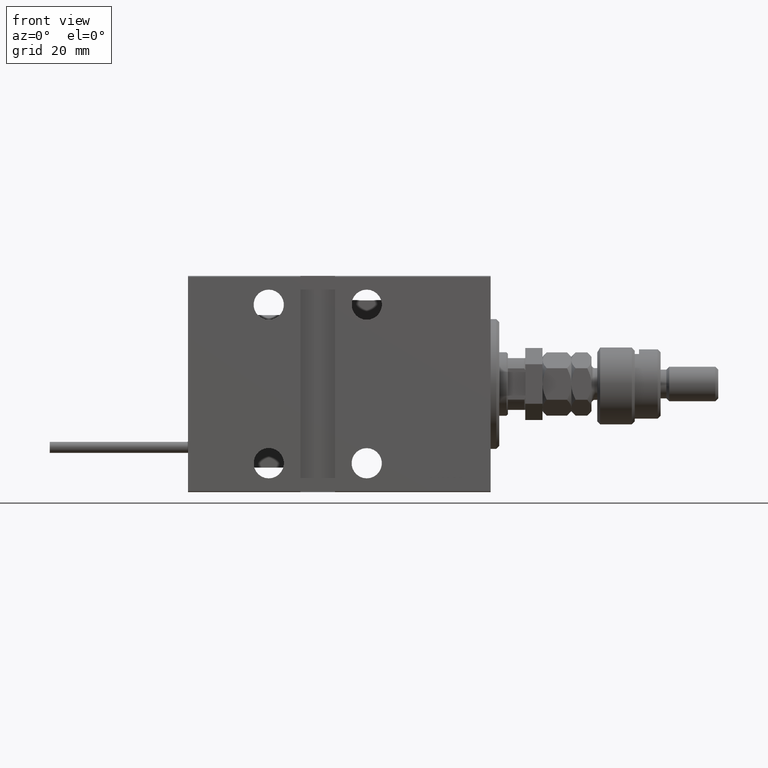
[diagram: clean part render]
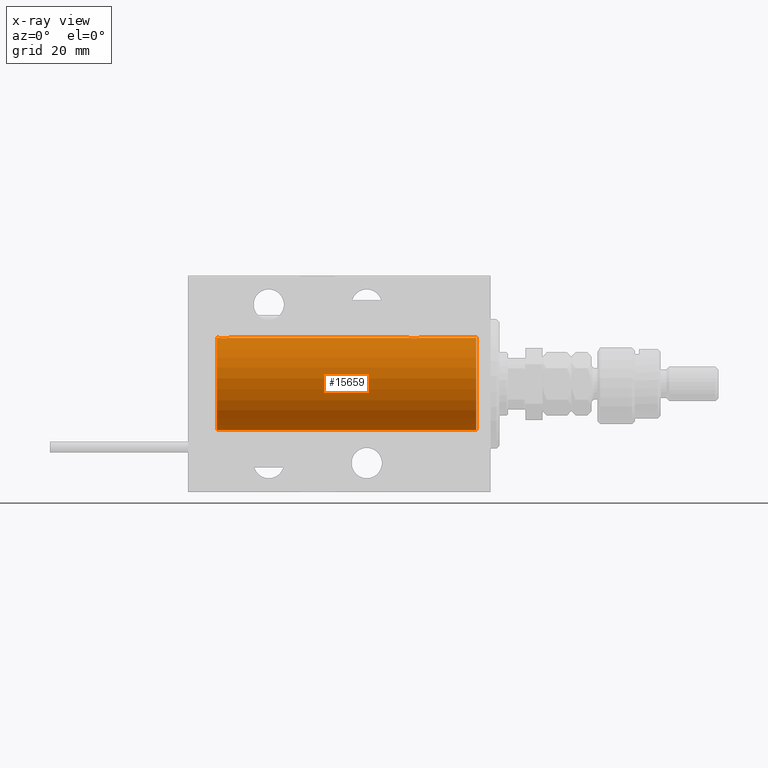
[diagram: x-ray — body ghosted, one internal face saturated and labeled with its STEP entity id]
A machine part, front view, then the same camera in x-ray: the body is ghosted and one INTERNAL B-rep face — a face not visible from any outside direction — is saturated and labeled: STEP entity #15659.
In plain terms, the highlighted cylindrical surface (partial cylindrical patch) has radius 16 mm, axis along (1, 0, -0).
Its self-contained STEP definition (entity closure, byte-faithful):
#826 = CARTESIAN_POINT ( 'NONE',  ( 94.50000000000002842, 0.1322838750249261119, 16.00000000000000000 ) ) ;
#1881 = CARTESIAN_POINT ( 'NONE',  ( 91.61382242942730159, 1.797743958659247854, 15.89876304682112007 ) ) ;
#1992 = CARTESIAN_POINT ( 'NONE',  ( 24.49999999999999289, 0.1305944228192297274, 15.99999999999999645 ) ) ;
#2092 = ORIENTED_EDGE ( 'NONE', *, *, #50266, .F. ) ;
#2136 = CARTESIAN_POINT ( 'NONE',  ( 91.85613031966988729, 1.898058445420878648, 15.88709929148890510 ) ) ;
#2203 = DIRECTION ( 'NONE',  ( -1.000000000000000000, -0.000000000000000000, -0.000000000000000000 ) ) ;
#2461 = CARTESIAN_POINT ( 'NONE',  ( 95.00000000000000000, 0.000000000000000000, 16.00000000000000000 ) ) ;
#2505 = CARTESIAN_POINT ( 'NONE',  ( 26.23748416992101085, 1.987008272775788731, 15.87616016863256618 ) ) ;
#2743 = CARTESIAN_POINT ( 'NONE',  ( 95.00000000000000000, 0.000000000000000000, 0.000000000000000000 ) ) ;
#2759 = EDGE_LOOP ( 'NONE', ( #2092, #40787, #23611, #37698, #14550, #29788, #38156, #10484 ) ) ;
#5724 = LINE ( 'NONE', #2461, #41151 ) ;
#5914 = CARTESIAN_POINT ( 'NONE',  ( 91.28032342557723666, 1.590393755196000347, 15.92092783521424693 ) ) ;
#6534 = CARTESIAN_POINT ( 'NONE',  ( 24.76517329325045225, 1.003662148334361959, 15.96885838080210007 ) ) ;
#6776 = DIRECTION ( 'NONE',  ( -1.000000000000000000, -0.000000000000000000, -0.000000000000000000 ) ) ;
#7328 = CARTESIAN_POINT ( 'NONE',  ( 24.56430947073869930, 0.5198215460038717595, 15.99206840425678955 ) ) ;
#7636 = VERTEX_POINT ( 'NONE', #31700 ) ;
#8613 = CARTESIAN_POINT ( 'NONE',  ( 95.00000000000000000, 1.959434878635765131E-15, -16.00000000000000000 ) ) ;
#9085 = EDGE_CURVE ( 'NONE', #23897, #13917, #22957, .T. ) ;
#9809 = CARTESIAN_POINT ( 'NONE',  ( 28.49999999999999645, -1.207828523974853969E-15, 16.00000000000000000 ) ) ;
#9930 = CARTESIAN_POINT ( 'NONE',  ( 94.29713414748218270, 0.8874076679346750707, 15.97583181162461052 ) ) ;
#10484 = ORIENTED_EDGE ( 'NONE', *, *, #9085, .T. ) ;
#10552 = CARTESIAN_POINT ( 'NONE',  ( 28.39758870055591444, 0.6452446332038146437, 15.98744362947834574 ) ) ;
#10697 = CARTESIAN_POINT ( 'NONE',  ( 90.50000000000000000, -2.738767290746308786E-23, 16.00000000000000000 ) ) ;
#11322 = DIRECTION ( 'NONE',  ( 0.000000000000000000, 0.000000000000000000, 1.000000000000000000 ) ) ;
#13200 = CARTESIAN_POINT ( 'NONE',  ( 95.00000000000000000, 0.000000000000000000, 16.00000000000000000 ) ) ;
#13677 = CARTESIAN_POINT ( 'NONE',  ( 94.43611326682062668, 0.5181437283162084739, 15.99211983514074653 ) ) ;
#13917 = VERTEX_POINT ( 'NONE', #51748 ) ;
#14458 = CARTESIAN_POINT ( 'NONE',  ( 90.56430947073874904, 0.5198215460038719815, 15.99206840425679310 ) ) ;
#14490 = CARTESIAN_POINT ( 'NONE',  ( 24.50000000000000000, -2.739635037742051899E-23, 16.00000000000000000 ) ) ;
#14550 = ORIENTED_EDGE ( 'NONE', *, *, #16802, .T. ) ;
#14549 = FACE_OUTER_BOUND ( 'NONE', #2759, .T. ) ;
#14565 = VECTOR ( 'NONE', #22950, 1000.000000000000000 ) ;
#14567 = CARTESIAN_POINT ( 'NONE',  ( 28.49999999999998579, 0.1322838750249257511, 16.00000000000000000 ) ) ;
#14792 = EDGE_CURVE ( 'NONE', #45315, #35365, #44469, .T. ) ;
#14966 = CARTESIAN_POINT ( 'NONE',  ( 90.49999999999998579, 0.1305944228192297552, 16.00000000000000000 ) ) ;
#15318 = CYLINDRICAL_SURFACE ( 'NONE', #49667, 16.00000000000000000 ) ;
#15336 = CARTESIAN_POINT ( 'NONE',  ( 24.50000000000000000, -2.739635037742051899E-23, 16.00000000000000000 ) ) ;
#15659 = ADVANCED_FACE ( 'NONE', ( #14549 ), #15318, .F. ) ;
#15934 = B_SPLINE_CURVE_WITH_KNOTS ( 'NONE', 3,
 ( #21696, #826, #50368, #13677, #17945, #9930, #30539, #38590, #22735, #42620, #22987, #47137, #18982, #42873, #31318, #46882, #2136, #1881, #47387, #5914, #18199, #35079, #22225, #39107, #34560, #39362, #14458, #18716, #14966, #10697 ),
 .UNSPECIFIED., .F., .F.,
 ( 4, 2, 2, 2, 2, 2, 2, 2, 2, 2, 2, 2, 2, 2, 4 ),
 ( 3.488315472694475996E-18, 0.0003911894522871309362, 0.0007823789045742584030, 0.001173568356861385761, 0.001564757809148513337, 0.002347136713722738129, 0.003129515618296963356, 0.003520705070584075318, 0.003911894522871188148, 0.004303083975158299677, 0.004694273427445412074, 0.005085462879732524470, 0.005476652332019635999, 0.005867841784306749263, 0.006259031236593860792 ),
 .UNSPECIFIED. ) ;
#16210 = CARTESIAN_POINT ( 'NONE',  ( 5.000000000000004441, 0.000000000000000000, 0.000000000000000000 ) ) ;
#16802 = EDGE_CURVE ( 'NONE', #47936, #46125, #5724, .T. ) ;
#17611 = VECTOR ( 'NONE', #37010, 1000.000000000000000 ) ;
#17945 = CARTESIAN_POINT ( 'NONE',  ( 94.39758870055594286, 0.6452446332038145327, 15.98744362947834929 ) ) ;
#18199 = CARTESIAN_POINT ( 'NONE',  ( 91.17924175171070544, 1.507649250492122173, 15.92908549642227101 ) ) ;
#18317 = CARTESIAN_POINT ( 'NONE',  ( 24.90998471899876066, 1.220169175415113827, 15.95377581882983442 ) ) ;
#18606 = DIRECTION ( 'NONE',  ( -1.000000000000000000, -0.000000000000000000, -0.000000000000000000 ) ) ;
#18716 = CARTESIAN_POINT ( 'NONE',  ( 90.51309075167873175, 0.2632563459770824177, 15.99834873924246459 ) ) ;
#18982 = CARTESIAN_POINT ( 'NONE',  ( 92.76191462762255924, 1.999903730784150957, 15.87451999516786216 ) ) ;
#19366 = CARTESIAN_POINT ( 'NONE',  ( 25.61382242942729803, 1.797743958659254515, 15.89876304682112007 ) ) ;
#21388 = LINE ( 'NONE', #50059, #14565 ) ;
#21696 = CARTESIAN_POINT ( 'NONE',  ( 94.50000000000000000, 3.590027768233731054E-15, 16.00000000000000000 ) ) ;
#22225 = CARTESIAN_POINT ( 'NONE',  ( 90.90998471899878552, 1.220169175415117158, 15.95377581882983975 ) ) ;
#22623 = CARTESIAN_POINT ( 'NONE',  ( 95.00000000000000000, 0.000000000000000000, 16.00000000000000000 ) ) ;
#22735 = CARTESIAN_POINT ( 'NONE',  ( 94.00610712468248664, 1.322357532253812806, 15.94553003295878391 ) ) ;
#22950 = DIRECTION ( 'NONE',  ( -1.000000000000000000, -0.000000000000000000, -0.000000000000000000 ) ) ;
#22957 = CIRCLE ( 'NONE', #52914, 16.00000000000000000 ) ;
#22987 = CARTESIAN_POINT ( 'NONE',  ( 93.50659181559579736, 1.747750603376301948, 15.90457341008072412 ) ) ;
#23104 = CARTESIAN_POINT ( 'NONE',  ( 28.43611326682063378, 0.5181437283162068086, 15.99211983514074298 ) ) ;
#23374 = CARTESIAN_POINT ( 'NONE',  ( 28.49999999999999645, -1.207828523974853969E-15, 16.00000000000000000 ) ) ;
#23611 = ORIENTED_EDGE ( 'NONE', *, *, #49788, .T. ) ;
#23638 = CARTESIAN_POINT ( 'NONE',  ( 26.37014691649501685, 2.000047931387139322, 15.87450182760079187 ) ) ;
#23897 = VERTEX_POINT ( 'NONE', #33550 ) ;
#26878 = CARTESIAN_POINT ( 'NONE',  ( 28.29713414748220046, 0.8874076679346754037, 15.97583181162460697 ) ) ;
#27404 = CARTESIAN_POINT ( 'NONE',  ( 27.02531756459403667, 1.947280337074160927, 15.88137861827786779 ) ) ;
#27605 = EDGE_CURVE ( 'NONE', #7636, #47936, #15934, .T. ) ;
#27661 = CARTESIAN_POINT ( 'NONE',  ( 24.60216273501104567, 0.6445079780200539954, 15.98747331501412461 ) ) ;
#28110 = B_SPLINE_CURVE_WITH_KNOTS ( 'NONE', 3,
 ( #23374, #14567, #38961, #23104, #10552, #26878, #42983, #47766, #35454, #35193, #43497, #27404, #31695, #23638, #2505, #30913, #43757, #19366, #47505, #47250, #43236, #48030, #18317, #6534, #35719, #27661, #7328, #51513, #1992, #15336 ),
 .UNSPECIFIED., .F., .F.,
 ( 4, 2, 2, 2, 2, 2, 2, 2, 2, 2, 2, 2, 2, 2, 4 ),
 ( 1.745049934674283425E-18, 0.0003911894522871204737, 0.0007823789045742392126, 0.001173568356861357789, 0.001564757809148476691, 0.002347136713722706037, 0.003129515618296936034, 0.003520705070584051466, 0.003911894522871166464, 0.004303083975158282330, 0.004694273427445396461, 0.005085462879732512327, 0.005476652332019627326, 0.005867841784306743191, 0.006259031236593858190 ),
 .UNSPECIFIED. ) ;
#28612 = VECTOR ( 'NONE', #18606, 1000.000000000000000 ) ;
#29788 = ORIENTED_EDGE ( 'NONE', *, *, #36159, .T. ) ;
#30539 = CARTESIAN_POINT ( 'NONE',  ( 94.23568098498257939, 1.002241074716279989, 15.96895041604535415 ) ) ;
#30913 = CARTESIAN_POINT ( 'NONE',  ( 25.98086902289887234, 1.935876924222074358, 15.88247600692093187 ) ) ;
#31139 = DIRECTION ( 'NONE',  ( -1.000000000000000000, 0.000000000000000000, 0.000000000000000000 ) ) ;
#31318 = CARTESIAN_POINT ( 'NONE',  ( 92.23748416992103216, 1.987008272775786066, 15.87616016863256974 ) ) ;
#31695 = CARTESIAN_POINT ( 'NONE',  ( 26.76191462762254858, 1.999903730784154066, 15.87451999516785861 ) ) ;
#31700 = CARTESIAN_POINT ( 'NONE',  ( 94.50000000000000000, 3.590027768233731054E-15, 16.00000000000000000 ) ) ;
#33250 = LINE ( 'NONE', #8613, #17611 ) ;
#33545 = EDGE_CURVE ( 'NONE', #38703, #23897, #21388, .T. ) ;
#33550 = CARTESIAN_POINT ( 'NONE',  ( 5.000000000000004441, 0.000000000000000000, 16.00000000000000000 ) ) ;
#34560 = CARTESIAN_POINT ( 'NONE',  ( 90.70250071394960401, 0.8866640484200096761, 15.97587307151818159 ) ) ;
#35079 = CARTESIAN_POINT ( 'NONE',  ( 90.99262839687571613, 1.321075116345873601, 15.94564302722883653 ) ) ;
#35193 = CARTESIAN_POINT ( 'NONE',  ( 27.72956111739783580, 1.598790766515148620, 15.92099550861380131 ) ) ;
#35365 = VERTEX_POINT ( 'NONE', #48024 ) ;
#35454 = CARTESIAN_POINT ( 'NONE',  ( 28.00610712468246177, 1.322357532253821910, 15.94553003295878391 ) ) ;
#35719 = CARTESIAN_POINT ( 'NONE',  ( 24.70250071394960045, 0.8866640484200088990, 15.97587307151817448 ) ) ;
#35776 = CARTESIAN_POINT ( 'NONE',  ( 90.50000000000000000, -2.738767290746308786E-23, 16.00000000000000000 ) ) ;
#36159 = EDGE_CURVE ( 'NONE', #46125, #38703, #28110, .T. ) ;
#36601 = DIRECTION ( 'NONE',  ( 0.000000000000000000, 0.000000000000000000, 1.000000000000000000 ) ) ;
#37010 = DIRECTION ( 'NONE',  ( -1.000000000000000000, -0.000000000000000000, -0.000000000000000000 ) ) ;
#37698 = ORIENTED_EDGE ( 'NONE', *, *, #27605, .T. ) ;
#38156 = ORIENTED_EDGE ( 'NONE', *, *, #33545, .T. ) ;
#38590 = CARTESIAN_POINT ( 'NONE',  ( 94.09051504852097025, 1.219564485341765758, 15.95382484008322344 ) ) ;
#38703 = VERTEX_POINT ( 'NONE', #14490 ) ;
#38734 = LINE ( 'NONE', #22623, #28612 ) ;
#38961 = CARTESIAN_POINT ( 'NONE',  ( 28.48700524008413382, 0.2623312429553315561, 15.99836091803360105 ) ) ;
#39107 = CARTESIAN_POINT ( 'NONE',  ( 90.76517329325047001, 1.003662148334365289, 15.96885838080210718 ) ) ;
#39362 = CARTESIAN_POINT ( 'NONE',  ( 90.60216273501103501, 0.6445079780200546615, 15.98747331501412106 ) ) ;
#40787 = ORIENTED_EDGE ( 'NONE', *, *, #14792, .F. ) ;
#41151 = VECTOR ( 'NONE', #2203, 1000.000000000000000 ) ;
#42620 = CARTESIAN_POINT ( 'NONE',  ( 93.72956111739786422, 1.598790766515141071, 15.92099550861381019 ) ) ;
#42873 = CARTESIAN_POINT ( 'NONE',  ( 92.37014691649503106, 2.000047931387137101, 15.87450182760080253 ) ) ;
#42983 = CARTESIAN_POINT ( 'NONE',  ( 28.23568098498261492, 1.002241074716280655, 15.96895041604536480 ) ) ;
#43236 = CARTESIAN_POINT ( 'NONE',  ( 25.17924175171067702, 1.507649250492130388, 15.92908549642226745 ) ) ;
#43497 = CARTESIAN_POINT ( 'NONE',  ( 27.50659181559580446, 1.747750603376297729, 15.90457341008072056 ) ) ;
#43757 = CARTESIAN_POINT ( 'NONE',  ( 25.85613031966986952, 1.898058445420883311, 15.88709929148890510 ) ) ;
#44469 = CIRCLE ( 'NONE', #50485, 16.00000000000000000 ) ;
#45315 = VERTEX_POINT ( 'NONE', #13200 ) ;
#46125 = VERTEX_POINT ( 'NONE', #9809 ) ;
#46882 = CARTESIAN_POINT ( 'NONE',  ( 91.98086902289892919, 1.935876924222073248, 15.88247600692093897 ) ) ;
#47137 = CARTESIAN_POINT ( 'NONE',  ( 93.02531756459404733, 1.947280337074161816, 15.88137861827787489 ) ) ;
#47250 = CARTESIAN_POINT ( 'NONE',  ( 25.28032342557723311, 1.590393755196000347, 15.92092783521424337 ) ) ;
#47387 = CARTESIAN_POINT ( 'NONE',  ( 91.49688752964959804, 1.735145127817741884, 15.90580292899658410 ) ) ;
#47477 = DIRECTION ( 'NONE',  ( 0.000000000000000000, 0.000000000000000000, 1.000000000000000000 ) ) ;
#47505 = CARTESIAN_POINT ( 'NONE',  ( 25.49688752964961225, 1.735145127817741439, 15.90580292899658410 ) ) ;
#47766 = CARTESIAN_POINT ( 'NONE',  ( 28.09051504852099512, 1.219564485341767091, 15.95382484008323409 ) ) ;
#47936 = VERTEX_POINT ( 'NONE', #35776 ) ;
#48011 = CARTESIAN_POINT ( 'NONE',  ( 95.00000000000000000, 0.000000000000000000, 0.000000000000000000 ) ) ;
#48024 = CARTESIAN_POINT ( 'NONE',  ( 95.00000000000000000, 1.959434878635765131E-15, -16.00000000000000000 ) ) ;
#48030 = CARTESIAN_POINT ( 'NONE',  ( 24.99262839687570903, 1.321075116345881595, 15.94564302722883298 ) ) ;
#49667 = AXIS2_PLACEMENT_3D ( 'NONE', #48011, #6776, #11322 ) ;
#49788 = EDGE_CURVE ( 'NONE', #45315, #7636, #38734, .T. ) ;
#50059 = CARTESIAN_POINT ( 'NONE',  ( 95.00000000000000000, 0.000000000000000000, 16.00000000000000000 ) ) ;
#50266 = EDGE_CURVE ( 'NONE', #35365, #13917, #33250, .T. ) ;
#50368 = CARTESIAN_POINT ( 'NONE',  ( 94.48700524008410184, 0.2623312429553332215, 15.99836091803360105 ) ) ;
#50485 = AXIS2_PLACEMENT_3D ( 'NONE', #2743, #31139, #47477 ) ;
#51403 = DIRECTION ( 'NONE',  ( -1.000000000000000000, 0.000000000000000000, 0.000000000000000000 ) ) ;
#51513 = CARTESIAN_POINT ( 'NONE',  ( 24.51309075167874596, 0.2632563459770819736, 15.99834873924246459 ) ) ;
#51748 = CARTESIAN_POINT ( 'NONE',  ( 5.000000000000004441, 1.959434878635765131E-15, -16.00000000000000000 ) ) ;
#52914 = AXIS2_PLACEMENT_3D ( 'NONE', #16210, #51403, #36601 ) ;